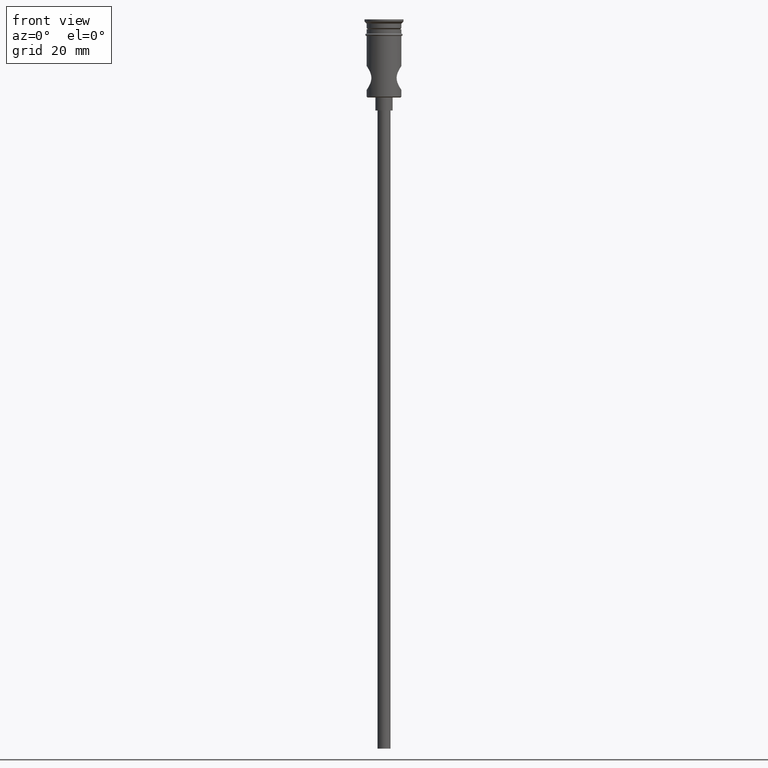
[diagram: clean part render]
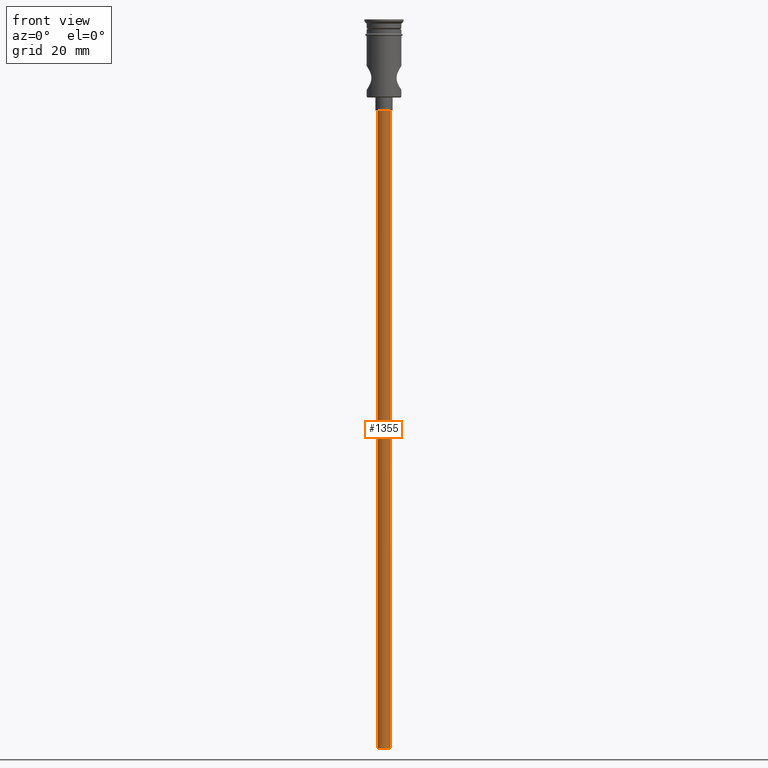
[diagram: same view with one face highlighted and labeled with its STEP entity id]
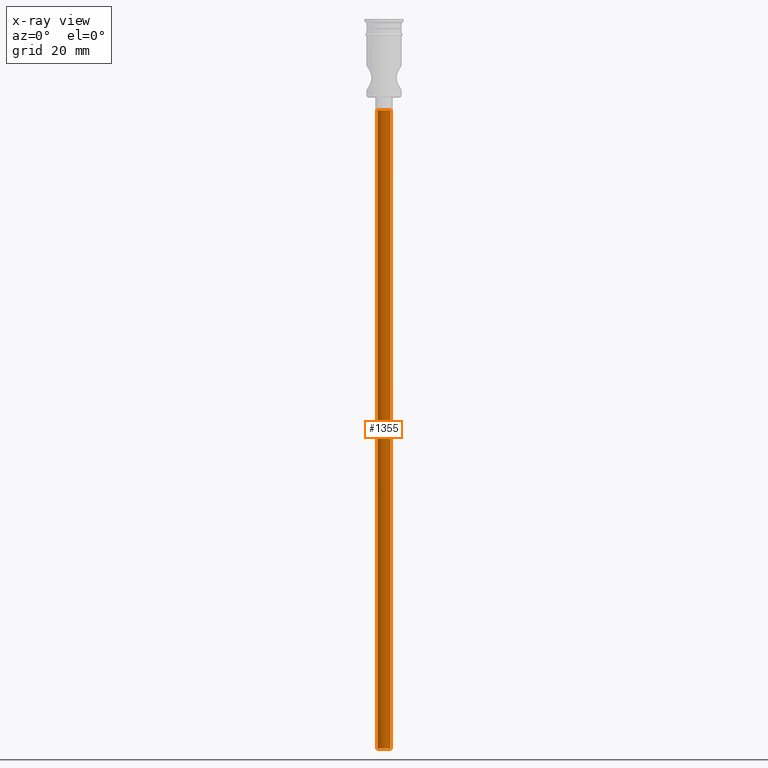
[diagram: x-ray of the same camera — body ghosted, the highlighted face saturated]
A machine part, front view. The second image highlights one B-rep face of the part: STEP entity #1355.
The next image is the same camera in x-ray: the body ghosted, the highlighted face saturated — about 0% of this face is hidden behind the body in this view.
In plain terms, the highlighted cylindrical surface (edge-blend (fillet) strip) has radius 1.5 mm, axis along (-0, -0, 1).
Its self-contained STEP definition (entity closure, byte-faithful):
#18 = CARTESIAN_POINT ( 'NONE',  ( -1.500000000000000222, 1.836970198721030181E-16, -20.99999999999999645 ) ) ;
#33 = FACE_OUTER_BOUND ( 'NONE', #76, .T. ) ;
#42 = DIRECTION ( 'NONE',  ( -0.000000000000000000, -0.000000000000000000, 1.000000000000000000 ) ) ;
#76 = EDGE_LOOP ( 'NONE', ( #580, #394, #1280, #1351 ) ) ;
#95 = CARTESIAN_POINT ( 'NONE',  ( 0.000000000000000000, 0.000000000000000000, -167.9999999999999716 ) ) ;
#97 = DIRECTION ( 'NONE',  ( 0.000000000000000000, 0.000000000000000000, -1.000000000000000000 ) ) ;
#110 = CYLINDRICAL_SURFACE ( 'NONE', #1271, 1.500000000000000222 ) ;
#176 = EDGE_CURVE ( 'NONE', #1388, #258, #931, .T. ) ;
#209 = CARTESIAN_POINT ( 'NONE',  ( 0.000000000000000000, 0.000000000000000000, -20.99999999999999645 ) ) ;
#214 = DIRECTION ( 'NONE',  ( -0.000000000000000000, -0.000000000000000000, 1.000000000000000000 ) ) ;
#222 = DIRECTION ( 'NONE',  ( -1.000000000000000000, 0.000000000000000000, 0.000000000000000000 ) ) ;
#249 = CIRCLE ( 'NONE', #1225, 1.500000000000000222 ) ;
#258 = VERTEX_POINT ( 'NONE', #1412 ) ;
#264 = EDGE_CURVE ( 'NONE', #538, #843, #305, .T. ) ;
#305 = LINE ( 'NONE', #746, #1013 ) ;
#310 = EDGE_CURVE ( 'NONE', #258, #843, #1150, .T. ) ;
#394 = ORIENTED_EDGE ( 'NONE', *, *, #1262, .F. ) ;
#442 = DIRECTION ( 'NONE',  ( 0.000000000000000000, 0.000000000000000000, -1.000000000000000000 ) ) ;
#538 = VERTEX_POINT ( 'NONE', #593 ) ;
#580 = ORIENTED_EDGE ( 'NONE', *, *, #264, .F. ) ;
#593 = CARTESIAN_POINT ( 'NONE',  ( -1.500000000000000222, 1.836970198721030181E-16, -167.9999999999999716 ) ) ;
#625 = DIRECTION ( 'NONE',  ( -1.000000000000000000, 0.000000000000000000, 0.000000000000000000 ) ) ;
#746 = CARTESIAN_POINT ( 'NONE',  ( -1.500000000000000222, 1.836970198721030181E-16, -167.9999999999999716 ) ) ;
#808 = VECTOR ( 'NONE', #42, 1000.000000000000000 ) ;
#843 = VERTEX_POINT ( 'NONE', #18 ) ;
#931 = LINE ( 'NONE', #1370, #808 ) ;
#960 = DIRECTION ( 'NONE',  ( -0.000000000000000000, -0.000000000000000000, 1.000000000000000000 ) ) ;
#1013 = VECTOR ( 'NONE', #960, 1000.000000000000000 ) ;
#1100 = DIRECTION ( 'NONE',  ( 1.000000000000000000, 0.000000000000000000, 0.000000000000000000 ) ) ;
#1150 = CIRCLE ( 'NONE', #1427, 1.500000000000000222 ) ;
#1207 = CARTESIAN_POINT ( 'NONE',  ( 0.000000000000000000, 0.000000000000000000, -167.9999999999999716 ) ) ;
#1225 = AXIS2_PLACEMENT_3D ( 'NONE', #95, #442, #222 ) ;
#1254 = CARTESIAN_POINT ( 'NONE',  ( 1.500000000000000222, 0.000000000000000000, -167.9999999999999716 ) ) ;
#1262 = EDGE_CURVE ( 'NONE', #1388, #538, #249, .T. ) ;
#1271 = AXIS2_PLACEMENT_3D ( 'NONE', #1207, #214, #1100 ) ;
#1280 = ORIENTED_EDGE ( 'NONE', *, *, #176, .T. ) ;
#1351 = ORIENTED_EDGE ( 'NONE', *, *, #310, .T. ) ;
#1355 = ADVANCED_FACE ( 'NONE', ( #33 ), #110, .T. ) ;
#1370 = CARTESIAN_POINT ( 'NONE',  ( 1.500000000000000222, 0.000000000000000000, -167.9999999999999716 ) ) ;
#1388 = VERTEX_POINT ( 'NONE', #1254 ) ;
#1412 = CARTESIAN_POINT ( 'NONE',  ( 1.500000000000000222, 0.000000000000000000, -20.99999999999999645 ) ) ;
#1427 = AXIS2_PLACEMENT_3D ( 'NONE', #209, #97, #625 ) ;